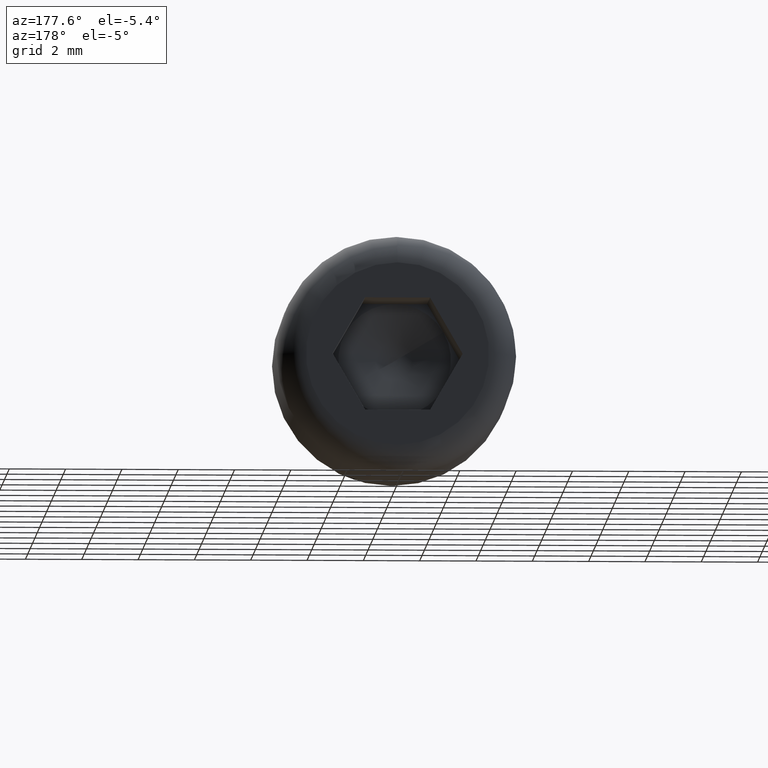
[diagram: clean part render]
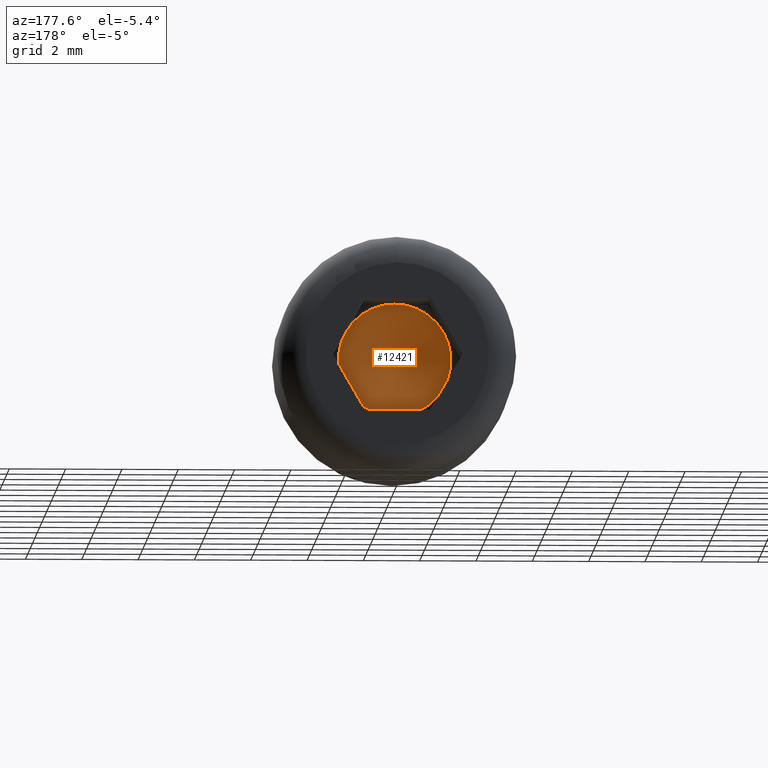
[diagram: same view with one face highlighted and labeled with its STEP entity id]
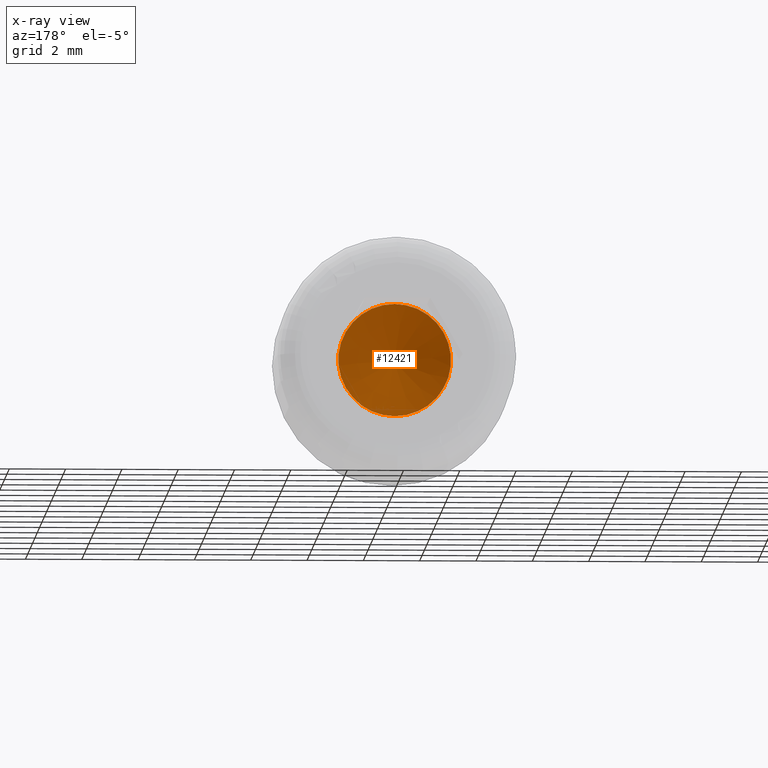
[diagram: x-ray of the same camera — body ghosted, the highlighted face saturated]
A machine part, auxiliary view. The second image highlights one B-rep face of the part: STEP entity #12421.
The next image is the same camera in x-ray: the body ghosted, the highlighted face saturated — about 0% of this face is hidden behind the body in this view.
In plain terms, the highlighted conical surface has half-angle 75.964 deg.
Its self-contained STEP definition (entity closure, byte-faithful):
#3 = EDGE_CURVE ( 'NONE', #13285, #13668, #1887, .T. ) ;
#974 = AXIS2_PLACEMENT_3D ( 'NONE', #13340, #15143, #3630 ) ;
#1173 = EDGE_CURVE ( 'NONE', #8449, #2139, #6628, .T. ) ;
#1251 = AXIS2_PLACEMENT_3D ( 'NONE', #1726, #11711, #6860 ) ;
#1650 = ORIENTED_EDGE ( 'NONE', *, *, #1173, .T. ) ;
#1726 = CARTESIAN_POINT ( 'NONE',  ( 2.595143592615407400E-017, 2.499999999999998200, 0.0000000000000000000 ) ) ;
#1826 = DIRECTION ( 'NONE',  ( -1.000000000000000000, -8.673617379884035500E-016, 0.0000000000000000000 ) ) ;
#1887 = CIRCLE ( 'NONE', #13569, 2.000000000000000000 ) ;
#1947 = EDGE_LOOP ( 'NONE', ( #7195, #1650, #5328, #8836, #6267, #14743 ) ) ;
#2139 = VERTEX_POINT ( 'NONE', #4191 ) ;
#2790 = CARTESIAN_POINT ( 'NONE',  ( -1.732050807568877000, 2.499999999999996900, -1.000000000000000200 ) ) ;
#2874 = VERTEX_POINT ( 'NONE', #3019 ) ;
#3019 = CARTESIAN_POINT ( 'NONE',  ( 1.732050807568877000, 2.499999999999999600, -1.000000000000000200 ) ) ;
#3548 = DIRECTION ( 'NONE',  ( -1.000000000000000000, -8.673617379884035500E-016, 0.0000000000000000000 ) ) ;
#3630 = DIRECTION ( 'NONE',  ( -1.000000000000000000, -8.673617379884035500E-016, 0.0000000000000000000 ) ) ;
#3985 = CARTESIAN_POINT ( 'NONE',  ( -3.496272137581358500E-016, 2.499999999999998200, -2.000000000000000000 ) ) ;
#4028 = EDGE_CURVE ( 'NONE', #5472, #13285, #14966, .T. ) ;
#4191 = CARTESIAN_POINT ( 'NONE',  ( 1.732050807568877000, 2.499999999999999600, 1.000000000000000200 ) ) ;
#4860 = DIRECTION ( 'NONE',  ( -8.154588661360981000E-016, 1.000000000000000000, -0.0000000000000000000 ) ) ;
#5328 = ORIENTED_EDGE ( 'NONE', *, *, #11701, .T. ) ;
#5472 = VERTEX_POINT ( 'NONE', #3985 ) ;
#5594 = CIRCLE ( 'NONE', #974, 2.000000000000000000 ) ;
#5950 = AXIS2_PLACEMENT_3D ( 'NONE', #7937, #14237, #1826 ) ;
#5959 = CIRCLE ( 'NONE', #9327, 2.000000000000000000 ) ;
#6267 = ORIENTED_EDGE ( 'NONE', *, *, #4028, .T. ) ;
#6628 = CIRCLE ( 'NONE', #1251, 2.000000000000000000 ) ;
#6860 = DIRECTION ( 'NONE',  ( -1.000000000000000000, -8.673617379884035500E-016, 0.0000000000000000000 ) ) ;
#7195 = ORIENTED_EDGE ( 'NONE', *, *, #15353, .T. ) ;
#7252 = DIRECTION ( 'NONE',  ( -8.154588661360981000E-016, 1.000000000000000000, -0.0000000000000000000 ) ) ;
#7937 = CARTESIAN_POINT ( 'NONE',  ( 2.595143592615407400E-017, 2.499999999999998200, 0.0000000000000000000 ) ) ;
#8315 = DIRECTION ( 'NONE',  ( -1.000000000000000000, -8.673617379884035500E-016, 0.0000000000000000000 ) ) ;
#8449 = VERTEX_POINT ( 'NONE', #11841 ) ;
#8836 = ORIENTED_EDGE ( 'NONE', *, *, #13590, .T. ) ;
#9327 = AXIS2_PLACEMENT_3D ( 'NONE', #11082, #4860, #3548 ) ;
#9580 = DIRECTION ( 'NONE',  ( -1.000000000000000000, -8.673617379884035500E-016, 0.0000000000000000000 ) ) ;
#11082 = CARTESIAN_POINT ( 'NONE',  ( 2.595143592615407400E-017, 2.499999999999998200, 0.0000000000000000000 ) ) ;
#11627 = CONICAL_SURFACE ( 'NONE', #14617, 4000.000000000012300, 1.325817663668033200 ) ;
#11701 = EDGE_CURVE ( 'NONE', #2139, #2874, #5594, .T. ) ;
#11711 = DIRECTION ( 'NONE',  ( -8.154588661360981000E-016, 1.000000000000000000, -0.0000000000000000000 ) ) ;
#11841 = CARTESIAN_POINT ( 'NONE',  ( 2.595143592615407400E-017, 2.499999999999998200, 2.000000000000000000 ) ) ;
#11988 = CARTESIAN_POINT ( 'NONE',  ( 2.595143592615407400E-017, 2.499999999999998200, 0.0000000000000000000 ) ) ;
#11989 = DIRECTION ( 'NONE',  ( -8.154588661360981000E-016, 1.000000000000000000, -0.0000000000000000000 ) ) ;
#12059 = DIRECTION ( 'NONE',  ( -1.000000000000000000, -8.326672684688648400E-016, 0.0000000000000000000 ) ) ;
#12421 = ADVANCED_FACE ( 'NONE', ( #13192 ), #11627, .F. ) ;
#13050 = CARTESIAN_POINT ( 'NONE',  ( -1.732050807568877200, 2.499999999999996900, 1.000000000000000200 ) ) ;
#13192 = FACE_OUTER_BOUND ( 'NONE', #1947, .T. ) ;
#13285 = VERTEX_POINT ( 'NONE', #2790 ) ;
#13340 = CARTESIAN_POINT ( 'NONE',  ( 2.595143592615407400E-017, 2.499999999999998200, 0.0000000000000000000 ) ) ;
#13569 = AXIS2_PLACEMENT_3D ( 'NONE', #11988, #14456, #9580 ) ;
#13590 = EDGE_CURVE ( 'NONE', #2874, #5472, #5959, .T. ) ;
#13668 = VERTEX_POINT ( 'NONE', #13050 ) ;
#13740 = CIRCLE ( 'NONE', #15235, 2.000000000000000000 ) ;
#14237 = DIRECTION ( 'NONE',  ( -8.154588661360981000E-016, 1.000000000000000000, -0.0000000000000000000 ) ) ;
#14456 = DIRECTION ( 'NONE',  ( -8.154588661360981000E-016, 1.000000000000000000, -0.0000000000000000000 ) ) ;
#14557 = CARTESIAN_POINT ( 'NONE',  ( 2.595143592615407400E-017, 2.499999999999998200, 0.0000000000000000000 ) ) ;
#14617 = AXIS2_PLACEMENT_3D ( 'NONE', #15833, #7252, #12059 ) ;
#14743 = ORIENTED_EDGE ( 'NONE', *, *, #3, .T. ) ;
#14966 = CIRCLE ( 'NONE', #5950, 2.000000000000000000 ) ;
#15143 = DIRECTION ( 'NONE',  ( -8.154588661360981000E-016, 1.000000000000000000, -0.0000000000000000000 ) ) ;
#15235 = AXIS2_PLACEMENT_3D ( 'NONE', #14557, #11989, #8315 ) ;
#15353 = EDGE_CURVE ( 'NONE', #13668, #8449, #13740, .T. ) ;
#15833 = CARTESIAN_POINT ( 'NONE',  ( -8.150251852671038500E-013, 1002.000000000000000, 0.0000000000000000000 ) ) ;